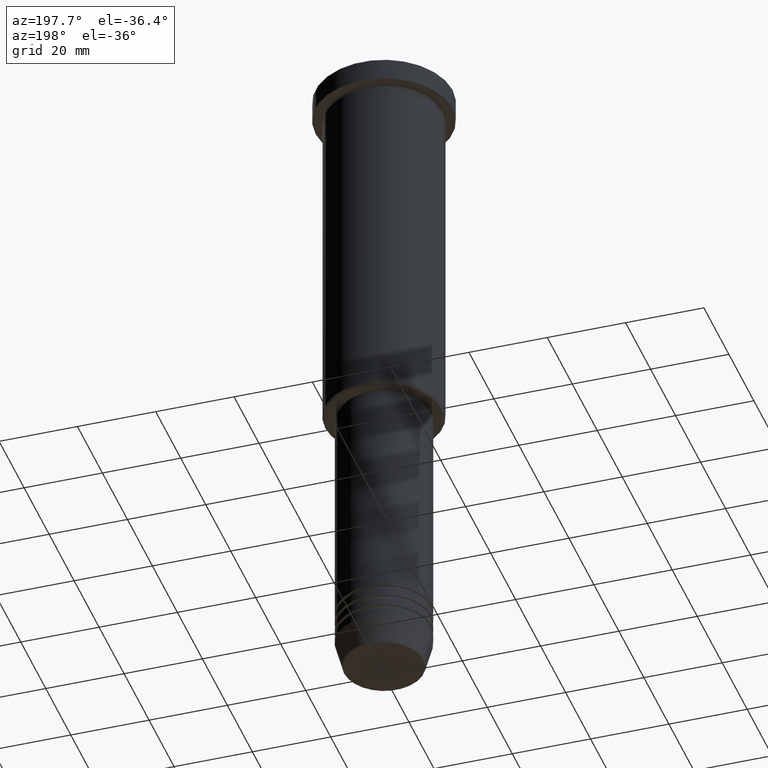
[diagram: clean part render]
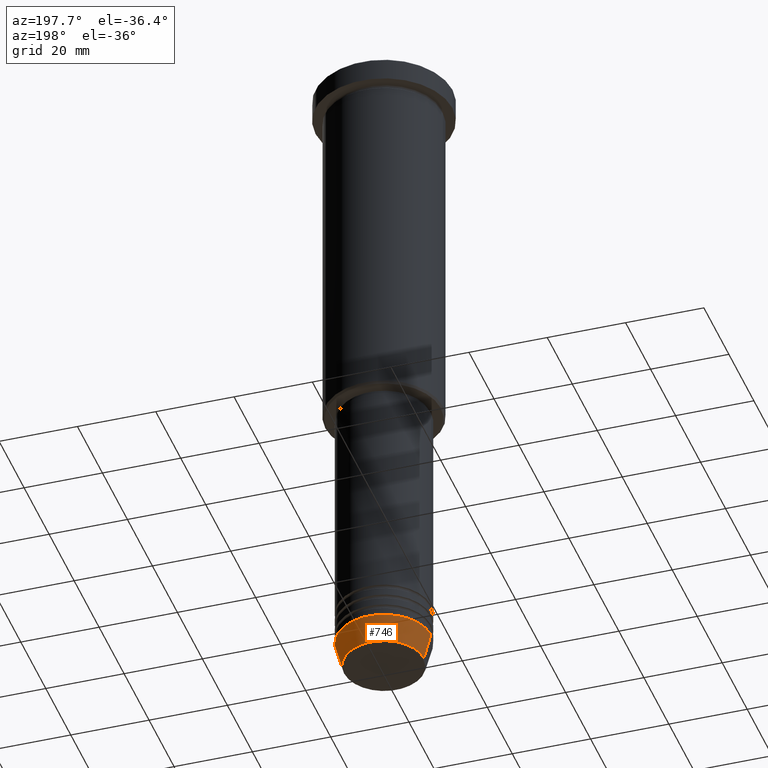
[diagram: same view with one face highlighted and labeled with its STEP entity id]
A machine part, auxiliary view. The second image highlights one B-rep face of the part: STEP entity #746.
In plain terms, the highlighted conical surface has half-angle 15 deg.
Its self-contained STEP definition (entity closure, byte-faithful):
#11 = EDGE_CURVE ( 'NONE', #684, #85, #685, .T. ) ;
#17 = VECTOR ( 'NONE', #818, 1000.000000000000000 ) ;
#30 = EDGE_CURVE ( 'NONE', #506, #1147, #1081, .T. ) ;
#85 = VERTEX_POINT ( 'NONE', #779 ) ;
#96 = EDGE_LOOP ( 'NONE', ( #161, #914, #893, #365 ) ) ;
#99 = AXIS2_PLACEMENT_3D ( 'NONE', #772, #587, #430 ) ;
#125 = DIRECTION ( 'NONE',  ( -0.000000000000000000, -0.000000000000000000, 1.000000000000000000 ) ) ;
#161 = ORIENTED_EDGE ( 'NONE', *, *, #30, .T. ) ;
#188 = CARTESIAN_POINT ( 'NONE',  ( 12.00000000000000000, 0.000000000000000000, -164.0000000000000000 ) ) ;
#225 = DIRECTION ( 'NONE',  ( -0.2588190451025213501, 3.169619151431772337E-17, 0.9659258262890680902 ) ) ;
#233 = CARTESIAN_POINT ( 'NONE',  ( 0.000000000000000000, 0.000000000000000000, -170.6294095225512706 ) ) ;
#300 = LINE ( 'NONE', #188, #17 ) ;
#319 = AXIS2_PLACEMENT_3D ( 'NONE', #233, #870, #946 ) ;
#365 = ORIENTED_EDGE ( 'NONE', *, *, #409, .F. ) ;
#395 = VECTOR ( 'NONE', #225, 1000.000000000000000 ) ;
#409 = EDGE_CURVE ( 'NONE', #506, #684, #300, .T. ) ;
#430 = DIRECTION ( 'NONE',  ( 1.000000000000000000, 0.000000000000000000, 0.000000000000000000 ) ) ;
#458 = EDGE_CURVE ( 'NONE', #1147, #85, #1045, .T. ) ;
#494 = DIRECTION ( 'NONE',  ( 1.000000000000000000, 0.000000000000000000, 0.000000000000000000 ) ) ;
#506 = VERTEX_POINT ( 'NONE', #759 ) ;
#582 = CARTESIAN_POINT ( 'NONE',  ( -12.00000000000000000, 1.469576158976823947E-15, -164.0000000000000000 ) ) ;
#587 = DIRECTION ( 'NONE',  ( -0.000000000000000000, -0.000000000000000000, 1.000000000000000000 ) ) ;
#684 = VERTEX_POINT ( 'NONE', #1070 ) ;
#685 = CIRCLE ( 'NONE', #844, 12.00000000000000000 ) ;
#746 = ADVANCED_FACE ( 'NONE', ( #890 ), #925, .T. ) ;
#759 = CARTESIAN_POINT ( 'NONE',  ( 10.22365507213719660, 0.000000000000000000, -170.6294095225512706 ) ) ;
#772 = CARTESIAN_POINT ( 'NONE',  ( 0.000000000000000000, 0.000000000000000000, -164.0000000000000000 ) ) ;
#779 = CARTESIAN_POINT ( 'NONE',  ( -12.00000000000000000, 1.469576158976823947E-15, -164.0000000000000000 ) ) ;
#782 = CARTESIAN_POINT ( 'NONE',  ( -10.22365507213719837, 1.360806402472383336E-15, -170.6294095225512706 ) ) ;
#818 = DIRECTION ( 'NONE',  ( 0.2588190451025213501, 0.000000000000000000, 0.9659258262890680902 ) ) ;
#844 = AXIS2_PLACEMENT_3D ( 'NONE', #926, #125, #494 ) ;
#870 = DIRECTION ( 'NONE',  ( -0.000000000000000000, -0.000000000000000000, 1.000000000000000000 ) ) ;
#890 = FACE_OUTER_BOUND ( 'NONE', #96, .T. ) ;
#893 = ORIENTED_EDGE ( 'NONE', *, *, #11, .F. ) ;
#914 = ORIENTED_EDGE ( 'NONE', *, *, #458, .T. ) ;
#925 = CONICAL_SURFACE ( 'NONE', #99, 12.00000000000000000, 0.2617993877991500740 ) ;
#926 = CARTESIAN_POINT ( 'NONE',  ( 0.000000000000000000, 0.000000000000000000, -164.0000000000000000 ) ) ;
#946 = DIRECTION ( 'NONE',  ( 1.000000000000000000, 0.000000000000000000, 0.000000000000000000 ) ) ;
#1045 = LINE ( 'NONE', #582, #395 ) ;
#1070 = CARTESIAN_POINT ( 'NONE',  ( 12.00000000000000000, 0.000000000000000000, -164.0000000000000000 ) ) ;
#1081 = CIRCLE ( 'NONE', #319, 10.22365507213719660 ) ;
#1147 = VERTEX_POINT ( 'NONE', #782 ) ;